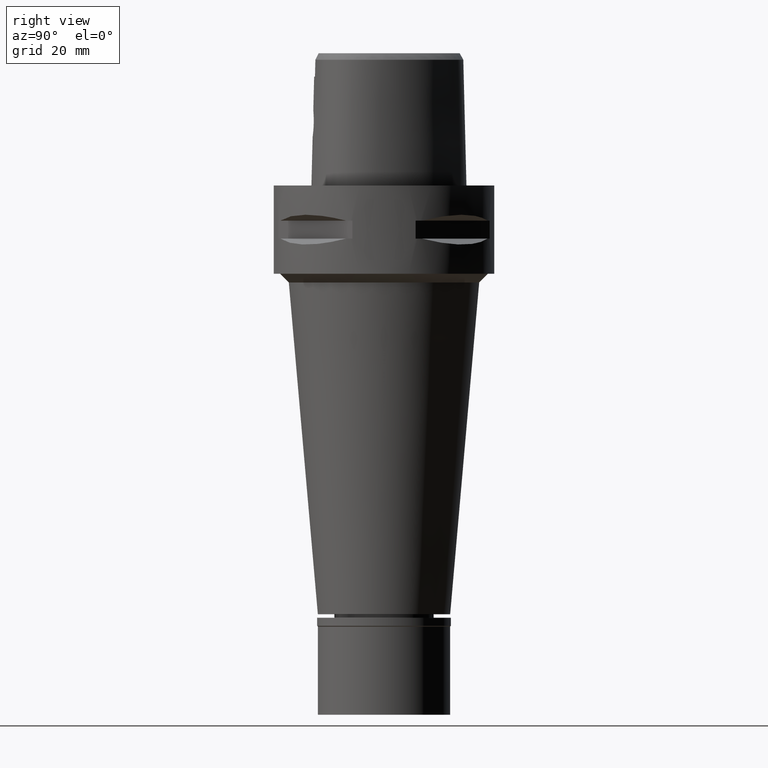
[diagram: clean part render]
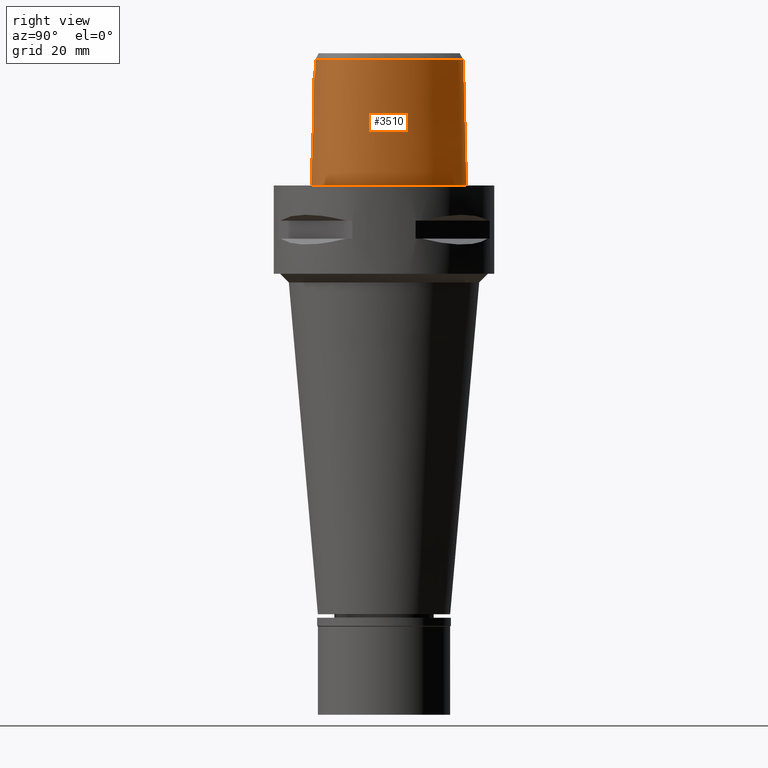
[diagram: same view with one face highlighted and labeled with its STEP entity id]
A machine part, right view. The second image highlights one B-rep face of the part: STEP entity #3510.
In plain terms, the highlighted face is a freeform B-spline surface patch.
Its self-contained STEP definition (entity closure, byte-faithful):
#32 = CARTESIAN_POINT ( 'NONE',  ( 1.354452607727719693, -16.00396228356807171, 16.73322745257438626 ) ) ;
#50 = VERTEX_POINT ( 'NONE', #1193 ) ;
#89 = CARTESIAN_POINT ( 'NONE',  ( 8.946741556184786504, -15.03902343750172577, 1.635247926651262063E-13 ) ) ;
#141 = CARTESIAN_POINT ( 'NONE',  ( 14.43869636025999981, -10.95090983396000084, 19.20395678522000082 ) ) ;
#157 = CARTESIAN_POINT ( 'NONE',  ( -1.591572851427000094E-11, -16.45500000000000185, 1.608343088339999949E-13 ) ) ;
#163 = CARTESIAN_POINT ( 'NONE',  ( 16.68217931803999932, -8.451606615302999614, -0.5704145579768999941 ) ) ;
#174 = CARTESIAN_POINT ( 'NONE',  ( 1.078575942914882235, -16.15565394761469520, 11.14687127074763495 ) ) ;
#178 = CARTESIAN_POINT ( 'NONE',  ( 6.766080446176000696E-11, 18.69499999997999851, 1.596870783752999901E-13 ) ) ;
#187 = CARTESIAN_POINT ( 'NONE',  ( 5.009809431609999919, -15.92506887082999967, 9.316771113621999945 ) ) ;
#201 = CARTESIAN_POINT ( 'NONE',  ( 2.681016418395044454, -15.93974068711151837, 15.46783011061540947 ) ) ;
#217 = CARTESIAN_POINT ( 'NONE',  ( 17.26695542753000012, -0.2694874597836000585, 9.316771113621999945 ) ) ;
#228 = CARTESIAN_POINT ( 'NONE',  ( 2.587629427706296781, -16.02556131009806961, 12.38252332209277640 ) ) ;
#242 = CARTESIAN_POINT ( 'NONE',  ( 4.965998119975999714, -15.68039706028000246, 19.20395678522000082 ) ) ;
#254 = CARTESIAN_POINT ( 'NONE',  ( 2.180887052763814449, -15.96648089881372279, 16.13220278528723028 ) ) ;
#267 = CARTESIAN_POINT ( 'NONE',  ( 11.47659488236999970, 12.46143684623999981, -0.5704145579768999941 ) ) ;
#285 = CARTESIAN_POINT ( 'NONE',  ( 1.935527014327863338, -16.09705987419036077, 11.64218429700402879 ) ) ;
#300 = CARTESIAN_POINT ( 'NONE',  ( -0.5593289320948999777, 18.44521845052999964, 9.316771113621999945 ) ) ;
#326 = CARTESIAN_POINT ( 'NONE',  ( 15.82879768173000024, 3.455165251978999930, 29.09114245681999833 ) ) ;
#333 = CARTESIAN_POINT ( 'NONE',  ( 13.75951381385658223, 7.944084035686391765, 28.52071728562190245 ) ) ;
#349 = CARTESIAN_POINT ( 'NONE',  ( 16.29641061553000014, 3.623925472855999974, 9.316771113621999945 ) ) ;
#350 = CARTESIAN_POINT ( 'NONE',  ( 0.0000000000000000000, -16.02877864023999877, 17.05000000000000071 ) ) ;
#356 = CARTESIAN_POINT ( 'NONE',  ( 15.84228676733417984, 3.460033425849808886, 28.52071728562190245 ) ) ;
#366 = CARTESIAN_POINT ( 'NONE',  ( 3.168920890822999770, -15.55911073834000113, 28.52071374672999582 ) ) ;
#374 = B_SPLINE_SURFACE_WITH_KNOTS ( 'NONE', 3, 3, ( 
 ( #1765, #1021, #4401, #2138 ),
 ( #3179, #3260, #1387, #2474 ),
 ( #3668, #4726, #3640, #1281 ),
 ( #1361, #187, #242, #2909 ),
 ( #2797, #1720, #643, #4347 ),
 ( #3281, #2525, #4750, #909 ),
 ( #4453, #4075, #3586, #938 ),
 ( #2164, #4805, #141, #2450 ),
 ( #2426, #3237, #1334, #3965 ),
 ( #536, #2064, #4044, #4426 ),
 ( #163, #4825, #1310, #561 ),
 ( #2499, #1693, #3206, #4378 ),
 ( #2826, #3991, #2088, #3608 ),
 ( #2854, #2876, #960, #4014 ),
 ( #582, #217, #986, #2627 ),
 ( #2189, #349, #1149, #326 ),
 ( #1098, #4175, #1846, #2967 ),
 ( #267, #3722, #1469, #696 ),
 ( #1901, #4942, #3342, #2991 ),
 ( #1497, #3019, #1524, #4203 ),
 ( #4558, #1127, #4152, #2649 ),
 ( #721, #742, #2268, #1867 ),
 ( #4533, #2576, #4503, #4862 ),
 ( #3696, #300, #1821, #4894 ) ),
 .UNSPECIFIED., .F., .F., .F.,
 ( 4, 1, 1, 1, 1, 1, 1, 1, 1, 1, 1, 1, 1, 1, 1, 1, 1, 1, 1, 1, 1, 4 ),
 ( 4, 4 ),
 ( -0.01796851319148000045, 0.0000000000000000000, 0.08333333333348000305, 0.1666666666667000196, 0.2083333333333000081, 0.2499999999998999967, 0.2916666666666000163, 0.3124999999997999933, 0.3333333333331000015, 0.3541666666665000407, 0.3749999999997999933, 0.4166666666664000096, 0.4583333333330000259, 0.4999999999995999866, 0.5833333333328000192, 0.6666666666660999718, 0.7499999999993000044, 0.8333333333325000369, 0.9166666666657000695, 0.9583333333322999747, 1.000000000000000000, 1.011711214084999977 ),
 ( 5.809728198525000277E-09, 0.9999997037037999803 ),
 .UNSPECIFIED. ) ;
#385 = CARTESIAN_POINT ( 'NONE',  ( 3.738627708319086640, -15.49270856215504644, 28.52071728562190245 ) ) ;
#423 = CARTESIAN_POINT ( 'NONE',  ( 16.85489147434397239, -5.354527548487260979, 28.52071728562190245 ) ) ;
#476 = CARTESIAN_POINT ( 'NONE',  ( 0.7748558813809633961, -16.16821842566323042, 11.04831638025929763 ) ) ;
#536 = CARTESIAN_POINT ( 'NONE',  ( 16.21839714489000173, -9.363695957446001472, -0.5704145579768999941 ) ) ;
#561 = CARTESIAN_POINT ( 'NONE',  ( 16.00353269289000124, -8.149703244535000835, 29.09114245681999833 ) ) ;
#570 = CARTESIAN_POINT ( 'NONE',  ( 3.050149896193000920, -15.93316336324772386, 14.18941404704232490 ) ) ;
#582 = CARTESIAN_POINT ( 'NONE',  ( 17.51166498198000099, -0.2260900534826000008, -0.5704145579768999941 ) ) ;
#600 = CARTESIAN_POINT ( 'NONE',  ( 2.170299400654049915, -15.96703807926082952, 16.14297866672072601 ) ) ;
#616 = FACE_OUTER_BOUND ( 'NONE', #2856, .T. ) ;
#628 = CARTESIAN_POINT ( 'NONE',  ( 2.262444582314412145, -15.96216938760132109, 16.04565077979858501 ) ) ;
#643 = CARTESIAN_POINT ( 'NONE',  ( 8.782085176560000761, -14.58525478159000066, 19.20395678522000082 ) ) ;
#655 = CARTESIAN_POINT ( 'NONE',  ( 2.775961287962938062, -15.99857004330711163, 12.73620107527709067 ) ) ;
#682 = CARTESIAN_POINT ( 'NONE',  ( 2.417729193041619595, -16.04731727844055911, 12.13798983179893654 ) ) ;
#696 = CARTESIAN_POINT ( 'NONE',  ( 10.90668517126999859, 11.98047084220999992, 29.09114245681999833 ) ) ;
#721 = CARTESIAN_POINT ( 'NONE',  ( 0.4897519511925998992, 18.72964555264000097, -0.5704145579768999941 ) ) ;
#742 = CARTESIAN_POINT ( 'NONE',  ( 0.4768940289813000111, 18.48195224257999669, 9.316771113621999945 ) ) ;
#748 = CARTESIAN_POINT ( 'NONE',  ( 1.893775678554818098, 17.84807068955749898, 28.52071728562190245 ) ) ;
#779 = CARTESIAN_POINT ( 'NONE',  ( -3.151832883024999780E-11, 17.98202997909999823, 28.52071728569000086 ) ) ;
#819 = CARTESIAN_POINT ( 'NONE',  ( 14.26907046692590519, -10.79012245165286643, 28.52071728562190245 ) ) ;
#853 = CARTESIAN_POINT ( 'NONE',  ( 0.1898211197373469161, -16.18126839359000257, 10.95000000000000107 ) ) ;
#860 = CARTESIAN_POINT ( 'NONE',  ( 17.71143735561807731, -3.269218750000115747, 1.635247926651262063E-13 ) ) ;
#882 = B_SPLINE_CURVE_WITH_KNOTS ( 'NONE', 3,
 ( #3777, #1796, #3315, #350 ),
 .UNSPECIFIED., .F., .F.,
 ( 4, 4 ),
 ( 0.0000000000000000000, 1.000000000000000000 ),
 .UNSPECIFIED. ) ;
#883 = ORIENTED_EDGE ( 'NONE', *, *, #1744, .T. ) ;
#909 = CARTESIAN_POINT ( 'NONE',  ( 11.32630903651999965, -13.06981832517000086, 29.09114245681999833 ) ) ;
#928 = CARTESIAN_POINT ( 'NONE',  ( 16.66912842140230921, -8.445800781249749534, 1.635247926651262063E-13 ) ) ;
#938 = CARTESIAN_POINT ( 'NONE',  ( 13.05575617205000150, -11.90823727459000025, 29.09114245681999833 ) ) ;
#950 = CARTESIAN_POINT ( 'NONE',  ( 3.014162081768899437, -15.95399573205361854, 13.52323755265707383 ) ) ;
#960 = CARTESIAN_POINT ( 'NONE',  ( 17.22987942155999974, -3.272349402665999829, 19.20395678522000082 ) ) ;
#971 = CARTESIAN_POINT ( 'NONE',  ( 2.320231428406521523, -15.95909571851455944, 15.98050410814317779 ) ) ;
#973 = EDGE_CURVE ( 'NONE', #2877, #2215, #2784, .T. ) ;
#986 = CARTESIAN_POINT ( 'NONE',  ( 17.02224587306999837, -0.3128848660846000329, 19.20395678522000082 ) ) ;
#1003 = CARTESIAN_POINT ( 'NONE',  ( 2.907704111751938214, -15.93016185020670861, 14.92213459652817953 ) ) ;
#1021 = CARTESIAN_POINT ( 'NONE',  ( -1.079551363736000136, -16.20136649747000135, 9.316771113621999945 ) ) ;
#1026 = CARTESIAN_POINT ( 'NONE',  ( 3.191384142201736829, -15.58827398948734633, 27.24714251809000132 ) ) ;
#1033 = CARTESIAN_POINT ( 'NONE',  ( 2.759961640973259467, -15.93564958624567929, 15.30749493561488705 ) ) ;
#1059 = CARTESIAN_POINT ( 'NONE',  ( 1.979050802157150679, -16.09313883417927116, 11.67852903116020791 ) ) ;
#1071 = CARTESIAN_POINT ( 'NONE',  ( 0.0000000000000000000, -16.02877864023999877, 17.05000000000000071 ) ) ;
#1085 = CARTESIAN_POINT ( 'NONE',  ( -1.980591514487999971E-12, -16.18126839358999902, 10.94999999999999929 ) ) ;
#1098 = CARTESIAN_POINT ( 'NONE',  ( 14.39249254917999998, 8.309508946952000485, -0.5704145579768999941 ) ) ;
#1103 = CARTESIAN_POINT ( 'NONE',  ( -3.151832883024999780E-11, 17.98202997909999823, 28.52071728569000086 ) ) ;
#1127 = CARTESIAN_POINT ( 'NONE',  ( 1.992618757980999744, 18.32080821491000222, 9.316771113621999945 ) ) ;
#1149 = CARTESIAN_POINT ( 'NONE',  ( 16.06260414862999752, 3.539545362417000351, 19.20395678522000082 ) ) ;
#1177 = LINE ( 'NONE', #2679, #4864 ) ;
#1193 = CARTESIAN_POINT ( 'NONE',  ( 2.030224829794000080E-07, -15.83752876601000281, 24.70000006102999990 ) ) ;
#1234 = CARTESIAN_POINT ( 'NONE',  ( 17.56373942933423749, -5.455996093749595488, 1.635247926651262063E-13 ) ) ;
#1281 = CARTESIAN_POINT ( 'NONE',  ( 1.286803369834000010, -15.75925599787999687, 29.09114245681999833 ) ) ;
#1310 = CARTESIAN_POINT ( 'NONE',  ( 16.22974823460999971, -8.250337701458001050, 19.20395678522000082 ) ) ;
#1320 = CARTESIAN_POINT ( 'NONE',  ( 2.044225401073505033, -16.08701963945086533, 11.73626748625702554 ) ) ;
#1334 = CARTESIAN_POINT ( 'NONE',  ( 15.25987615191000124, -9.930205417580001637, 19.20395678522000082 ) ) ;
#1347 = CARTESIAN_POINT ( 'NONE',  ( 2.836520581861567081, -15.93251973351802242, 15.12113420123080942 ) ) ;
#1361 = CARTESIAN_POINT ( 'NONE',  ( 5.053620743243999236, -16.16974068137999865, -0.5704145579768999941 ) ) ;
#1363 = B_SPLINE_CURVE_WITH_KNOTS ( 'NONE', 3,
 ( #4290, #853, #2371, #3908, #476, #1998, #3520, #174, #2461, #2952, #1753, #2561, #4489, #3293, #4765, #4878, #285, #1059, #1320, #2890, #4112, #3624, #4842, #3654, #4084, #1433, #682, #2842, #228, #3596, #4388, #4792, #655, #1703, #3248, #3220, #2176, #950, #4002, #2098, #4412, #4466, #3707, #570, #1807, #1776, #3681, #1003, #2514, #4815, #1347, #4439, #4062, #3270, #1033, #201, #1373, #1732, #2864, #971, #628, #2484, #4027, #254, #600, #2150, #1403, #3327, #2124, #2924, #2536, #2232, #3427, #2254, #2660, #32, #1560, #4903, #3785, #2687, #1460 ),
 .UNSPECIFIED., .F., .F.,
 ( 4, 2, 2, 1, 1, 1, 2, 2, 2, 2, 2, 1, 1, 2, 2, 2, 2, 2, 1, 2, 2, 2, 2, 2, 2, 2, 2, 1, 1, 1, 2, 2, 2, 2, 2, 1, 1, 2, 2, 2, 2, 2, 2, 2, 2, 4 ),
 ( 0.0000000000000000000, 0.06250000000000194289, 0.09375000000000292821, 0.1093750000000034278, 0.1171875000000035943, 0.1210937500000035666, 0.1230468750000035943, 0.1250000000000036082, 0.1874999999999998612, 0.2187499999999979738, 0.2343749999999970024, 0.2421874999999965306, 0.2460937499999961142, 0.2480468749999960587, 0.2499999999999960032, 0.2812499999999952816, 0.3124999999999946154, 0.3437499999999938938, 0.3593749999999935607, 0.3671874999999931721, 0.3749999999999927280, 0.4374999999999883982, 0.4687499999999862332, 0.4843749999999854561, 0.4999999999999846789, 0.5624999999999807931, 0.5937499999999786837, 0.6093749999999779066, 0.6171874999999776845, 0.6210937499999773515, 0.6230468749999771294, 0.6249999999999770184, 0.6874999999999783507, 0.7187499999999789058, 0.7343749999999792388, 0.7421874999999797939, 0.7460937499999801270, 0.7480468749999799050, 0.7499999999999797939, 0.7812499999999830136, 0.7968749999999842348, 0.8124999999999854561, 0.8437499999999878986, 0.8593749999999890088, 0.8749999999999900080, 1.000000000000000000 ),
 .UNSPECIFIED. ) ;
#1373 = CARTESIAN_POINT ( 'NONE',  ( 2.520317714005605669, -15.94834054842959503, 15.72060082174885132 ) ) ;
#1387 = CARTESIAN_POINT ( 'NONE',  ( -0.7138086239183000226, -15.96808641368000004, 19.20395678522000082 ) ) ;
#1397 = EDGE_CURVE ( 'NONE', #50, #3511, #882, .T. ) ;
#1403 = CARTESIAN_POINT ( 'NONE',  ( 2.088968113521980197, -15.97131126311716542, 16.22457167555463542 ) ) ;
#1427 = CARTESIAN_POINT ( 'NONE',  ( 3.168920890822999770, -15.55911073834000113, 28.52071374672999582 ) ) ;
#1433 = CARTESIAN_POINT ( 'NONE',  ( 2.290593162243965253, -16.06186194956453761, 11.98364703425936995 ) ) ;
#1460 = CARTESIAN_POINT ( 'NONE',  ( 0.0000000000000000000, -16.02877864023999877, 17.05000000000000071 ) ) ;
#1469 = CARTESIAN_POINT ( 'NONE',  ( 11.09665507497000014, 12.14079284355000077, 19.20395678522000082 ) ) ;
#1478 = CARTESIAN_POINT ( 'NONE',  ( 7.523733068099107690, 15.26501041874258213, 28.52071728562190245 ) ) ;
#1497 = CARTESIAN_POINT ( 'NONE',  ( 4.735056263137000343, 17.74784407613000070, -0.5704145579768999941 ) ) ;
#1507 = CARTESIAN_POINT ( 'NONE',  ( 16.99625257116878174, -3.273868232426702995, 28.52071728562190245 ) ) ;
#1524 = CARTESIAN_POINT ( 'NONE',  ( 4.522582310650000714, 17.29581193677000073, 19.20395678522000082 ) ) ;
#1556 = CARTESIAN_POINT ( 'NONE',  ( 11.33338046474290373, -13.08225241901327607, 28.52071728562190245 ) ) ;
#1560 = CARTESIAN_POINT ( 'NONE',  ( 1.262794661676007069, -16.00712763199255662, 16.77676499123156972 ) ) ;
#1615 = CARTESIAN_POINT ( 'NONE',  ( 5.051093167571108822, -16.15562500000260115, 1.635247926651262063E-13 ) ) ;
#1688 = CARTESIAN_POINT ( 'NONE',  ( 13.50690093479998488, -12.48264648437769964, 1.635247926651262063E-13 ) ) ;
#1693 = CARTESIAN_POINT ( 'NONE',  ( 16.94089135171000038, -7.099401475192999911, 9.316771113621999945 ) ) ;
#1703 = CARTESIAN_POINT ( 'NONE',  ( 2.796681338616600065, -15.99533385695102794, 12.78273984513034556 ) ) ;
#1720 = CARTESIAN_POINT ( 'NONE',  ( 8.866858758149000153, -14.81887824799999898, 9.316771113621999945 ) ) ;
#1732 = CARTESIAN_POINT ( 'NONE',  ( 2.459696765391574669, -15.95161770387217359, 15.80683248070965163 ) ) ;
#1744 = EDGE_CURVE ( 'NONE', #2264, #4265, #4719, .T. ) ;
#1753 = CARTESIAN_POINT ( 'NONE',  ( 1.150837130458068236, -16.15205889506641412, 11.17544410961278167 ) ) ;
#1765 = CARTESIAN_POINT ( 'NONE',  ( -1.089046662554999934, -16.44835921565999826, -0.5704145579768999941 ) ) ;
#1776 = CARTESIAN_POINT ( 'NONE',  ( 2.975249651912823090, -15.92914271478721311, 14.67846616982686747 ) ) ;
#1796 = CARTESIAN_POINT ( 'NONE',  ( 6.782427745162731141E-08, -15.90128720080152824, 22.15000025259048755 ) ) ;
#1798 = CARTESIAN_POINT ( 'NONE',  ( 1.084489111477044077, -15.83754148653905602, 24.70000016056458136 ) ) ;
#1807 = CARTESIAN_POINT ( 'NONE',  ( 3.032153927794988935, -15.93034332000362419, 14.38503233290865779 ) ) ;
#1821 = CARTESIAN_POINT ( 'NONE',  ( -0.5443412260875999387, 18.19851716624000204, 19.20395678522000082 ) ) ;
#1846 = CARTESIAN_POINT ( 'NONE',  ( 13.96223233681999787, 8.061115452595998931, 19.20395678522000082 ) ) ;
#1853 = CARTESIAN_POINT ( 'NONE',  ( 16.01658383235468008, -8.155509186612492911, 28.52071728562190245 ) ) ;
#1867 = CARTESIAN_POINT ( 'NONE',  ( 0.4511781845585999817, 17.98656562247999702, 29.09114245681999833 ) ) ;
#1880 = CARTESIAN_POINT ( 'NONE',  ( 16.79165444020021525, -0.3537785292840713303, 28.52071728562190245 ) ) ;
#1901 = CARTESIAN_POINT ( 'NONE',  ( 7.976721799452999306, 15.84201698333000152, -0.5704145579768999941 ) ) ;
#1998 = CARTESIAN_POINT ( 'NONE',  ( 0.9209982704662165176, -16.16262558226605250, 11.09193420934338548 ) ) ;
#2004 = CARTESIAN_POINT ( 'NONE',  ( 14.78833380399403197, -11.28232910156808444, 1.635247926651262063E-13 ) ) ;
#2064 = CARTESIAN_POINT ( 'NONE',  ( 16.00394177384999850, -9.239880090887000463, 9.316771113621999945 ) ) ;
#2083 = CARTESIAN_POINT ( 'NONE',  ( 0.6801907859383344856, 18.69499999999571571, 1.635247926651262063E-13 ) ) ;
#2088 = CARTESIAN_POINT ( 'NONE',  ( 17.08644829536000032, -5.387673914516000195, 19.20395678522000082 ) ) ;
#2098 = CARTESIAN_POINT ( 'NONE',  ( 3.041209740384549942, -15.94490574327321930, 13.76368115324908281 ) ) ;
#2124 = CARTESIAN_POINT ( 'NONE',  ( 1.898958778535287273, -15.98067541706731731, 16.38724889510308103 ) ) ;
#2138 = CARTESIAN_POINT ( 'NONE',  ( -1.060560766097000229, -15.70738106109999954, 29.09114245681999833 ) ) ;
#2150 = CARTESIAN_POINT ( 'NONE',  ( 2.164021906619612245, -15.96736812113674553, 16.14931344321803053 ) ) ;
#2164 = CARTESIAN_POINT ( 'NONE',  ( 14.79871907459999925, -11.29217323823000108, -0.5704145579768999941 ) ) ;
#2168 = LINE ( 'NONE', #1103, #3552 ) ;
#2169 = CARTESIAN_POINT ( 'NONE',  ( 3.235096591086000117, -15.64751801257999908, 24.70000006080999810 ) ) ;
#2176 = CARTESIAN_POINT ( 'NONE',  ( 2.957688824804170835, -15.96752846870872666, 13.22897551199208621 ) ) ;
#2189 = CARTESIAN_POINT ( 'NONE',  ( 16.53021708242999921, 3.708305583294000396, -0.5704145579768999941 ) ) ;
#2215 = VERTEX_POINT ( 'NONE', #366 ) ;
#2217 = ORIENTED_EDGE ( 'NONE', *, *, #973, .T. ) ;
#2232 = CARTESIAN_POINT ( 'NONE',  ( 1.737183591012293027, -15.98828192606207388, 16.50739953107602176 ) ) ;
#2254 = CARTESIAN_POINT ( 'NONE',  ( 1.531589067142498539, -15.99732691922906369, 16.63945844436470267 ) ) ;
#2264 = VERTEX_POINT ( 'NONE', #3792 ) ;
#2268 = CARTESIAN_POINT ( 'NONE',  ( 0.4640361067698999809, 18.23425893253000041, 19.20395678522000082 ) ) ;
#2300 = CARTESIAN_POINT ( 'NONE',  ( 5.902447799196640865, -15.16907841529824630, 28.52071728562190245 ) ) ;
#2338 = CARTESIAN_POINT ( 'NONE',  ( -3.151832883024999780E-11, 17.98202997909999823, 28.52071728569000086 ) ) ;
#2371 = CARTESIAN_POINT ( 'NONE',  ( 0.3842297570381348337, -16.17878268541348064, 10.96777226348872247 ) ) ;
#2375 = CARTESIAN_POINT ( 'NONE',  ( 7.967839664225208729, 15.83070312499480714, 1.635247926651262063E-13 ) ) ;
#2398 = ORIENTED_EDGE ( 'NONE', *, *, #4710, .F. ) ;
#2421 = EDGE_CURVE ( 'NONE', #2559, #3511, #1363, .T. ) ;
#2426 = CARTESIAN_POINT ( 'NONE',  ( 15.66039569079999794, -10.22138777225000084, -0.5704145579768999941 ) ) ;
#2445 = CARTESIAN_POINT ( 'NONE',  ( 17.16495051781134151, -7.165908203125344045, 1.635247926651262063E-13 ) ) ;
#2450 = CARTESIAN_POINT ( 'NONE',  ( 14.25868500309000098, -10.78027813182999850, 29.09114245681999833 ) ) ;
#2461 = CARTESIAN_POINT ( 'NONE',  ( 1.120763508486741777, -16.15358090583465867, 11.16333240776579494 ) ) ;
#2474 = CARTESIAN_POINT ( 'NONE',  ( -0.7074880755080998895, -15.72098129229000385, 29.09114245681999833 ) ) ;
#2484 = CARTESIAN_POINT ( 'NONE',  ( 2.232748692361829601, -15.96374470980125793, 16.07819212816551868 ) ) ;
#2499 = CARTESIAN_POINT ( 'NONE',  ( 17.17866842593999976, -7.169980043611000831, -0.5704145579768999941 ) ) ;
#2514 = CARTESIAN_POINT ( 'NONE',  ( 2.883981873338816726, -15.93080840504316420, 14.99485968243840972 ) ) ;
#2525 = CARTESIAN_POINT ( 'NONE',  ( 11.57144732050000080, -13.50085889171999831, 9.316771113621999945 ) ) ;
#2536 = CARTESIAN_POINT ( 'NONE',  ( 1.779262221764184915, -15.98633376436652753, 16.47774649146144910 ) ) ;
#2559 = VERTEX_POINT ( 'NONE', #1085 ) ;
#2561 = CARTESIAN_POINT ( 'NONE',  ( 1.158353828547291409, -16.15167258786864934, 11.17852165137630926 ) ) ;
#2576 = CARTESIAN_POINT ( 'NONE',  ( -0.3730031669434999975, 18.45651549991999829, 9.316771113621999945 ) ) ;
#2627 = CARTESIAN_POINT ( 'NONE',  ( 16.77753631861000372, -0.3562822723856000628, 29.09114245681999833 ) ) ;
#2633 = CARTESIAN_POINT ( 'NONE',  ( 4.422474504765936842, 17.08283549832882287, 28.52071728562190245 ) ) ;
#2649 = CARTESIAN_POINT ( 'NONE',  ( 1.890839689257999945, 17.83402871186000027, 29.09114245681999833 ) ) ;
#2657 = CARTESIAN_POINT ( 'NONE',  ( 0.6295828025424695662, 17.98202997637991274, 28.52071728562190245 ) ) ;
#2660 = CARTESIAN_POINT ( 'NONE',  ( 1.399412083726095712, -16.00233608542868069, 16.71046994217811843 ) ) ;
#2679 = CARTESIAN_POINT ( 'NONE',  ( -1.980591514487999971E-12, -16.18126839358999902, 10.94999999999999929 ) ) ;
#2685 = CARTESIAN_POINT ( 'NONE',  ( 10.91764517732630857, 11.98972036053591594, 28.52071728562190245 ) ) ;
#2687 = CARTESIAN_POINT ( 'NONE',  ( 0.3724840145390354018, -16.02877864023999521, 17.04999999999999716 ) ) ;
#2722 = ORIENTED_EDGE ( 'NONE', *, *, #1397, .T. ) ;
#2749 = CARTESIAN_POINT ( 'NONE',  ( 4.728927206815285444, 17.73480468749460925, 1.635247926651262063E-13 ) ) ;
#2753 = ORIENTED_EDGE ( 'NONE', *, *, #3599, .T. ) ;
#2770 = B_SPLINE_CURVE_WITH_KNOTS ( 'NONE', 3,
 ( #2169, #3700, #1798, #3317 ),
 .UNSPECIFIED., .F., .F.,
 ( 4, 4 ),
 ( 0.0000000000000000000, 1.000000000000000000 ),
 .UNSPECIFIED. ) ;
#2784 = B_SPLINE_CURVE_WITH_KNOTS ( 'NONE', 3,
 ( #779, #2657, #748, #2633, #1478, #2685, #333, #356, #1880, #1507, #423, #4255, #1853, #3095, #3371, #819, #3399, #1556, #4564, #2300, #385, #3002 ),
 .UNSPECIFIED., .F., .F.,
 ( 4, 1, 1, 1, 1, 1, 1, 1, 1, 1, 1, 1, 1, 1, 1, 1, 1, 1, 1, 4 ),
 ( 0.0000000000000000000, 0.04404152929334001487, 0.08808305858551720990, 0.1761661171698718220, 0.2642491757542264619, 0.3523322343385810740, 0.4404152929230412683, 0.5284983515073958804, 0.5725398807995731865, 0.6165814100917503815, 0.6606229393839277986, 0.6826437040300163961, 0.7046644686762107979, 0.7266852333222995064, 0.7487059979682822997, 0.7927475272605654100, 0.8367890565527427160, 0.8808305858449199111, 0.9689136444292956174, 1.000000000000000000 ),
 .UNSPECIFIED. ) ;
#2790 = CARTESIAN_POINT ( 'NONE',  ( 16.51672824780114723, 3.703437499999497007, 1.635247926651262063E-13 ) ) ;
#2797 = CARTESIAN_POINT ( 'NONE',  ( 8.951632339738001320, -15.05250171440999907, -0.5704145579768999941 ) ) ;
#2826 = CARTESIAN_POINT ( 'NONE',  ( 17.57791639371000159, -5.458025465409999555, -0.5704145579768999941 ) ) ;
#2842 = CARTESIAN_POINT ( 'NONE',  ( 2.478737183293503232, -16.03986208745135755, 12.22013516387799648 ) ) ;
#2854 = CARTESIAN_POINT ( 'NONE',  ( 17.72574105662999955, -3.269125760316999862, -0.5704145579768999941 ) ) ;
#2856 = EDGE_LOOP ( 'NONE', ( #3462, #2217, #2398, #4110, #2722, #3885, #2753, #883 ) ) ;
#2864 = CARTESIAN_POINT ( 'NONE',  ( 2.356615372638850570, -15.95714923954085585, 15.93698914121854671 ) ) ;
#2876 = CARTESIAN_POINT ( 'NONE',  ( 17.47781023909000098, -3.270737581490999801, 9.316771113621999945 ) ) ;
#2877 = VERTEX_POINT ( 'NONE', #2338 ) ;
#2890 = CARTESIAN_POINT ( 'NONE',  ( 2.076784380858856416, -16.08390063340872800, 11.76594178764125331 ) ) ;
#2909 = CARTESIAN_POINT ( 'NONE',  ( 4.922186808341999509, -15.43572524972999993, 29.09114245681999833 ) ) ;
#2916 = CARTESIAN_POINT ( 'NONE',  ( 3.235096591086000117, -15.64751801257999908, 24.70000006080999810 ) ) ;
#2924 = CARTESIAN_POINT ( 'NONE',  ( 1.859549321997236992, -15.98255794229956273, 16.41807320997656205 ) ) ;
#2952 = CARTESIAN_POINT ( 'NONE',  ( 1.138812104615386955, -16.15267061231297419, 11.17057442770735420 ) ) ;
#2967 = CARTESIAN_POINT ( 'NONE',  ( 13.74710223065000037, 7.936918705416999842, 29.09114245681999833 ) ) ;
#2991 = CARTESIAN_POINT ( 'NONE',  ( 7.514850767608999504, 15.25369634989999845, 29.09114245681999833 ) ) ;
#3002 = CARTESIAN_POINT ( 'NONE',  ( 3.168920890822999770, -15.55911073834000113, 28.52071374672999582 ) ) ;
#3019 = CARTESIAN_POINT ( 'NONE',  ( 4.628819286894000129, 17.52182800645000071, 9.316771113621999945 ) ) ;
#3095 = CARTESIAN_POINT ( 'NONE',  ( 15.58740368722555836, -8.999391713747623811, 28.52071728562190245 ) ) ;
#3127 = CARTESIAN_POINT ( 'NONE',  ( 11.68694516583672716, -13.70394531249364789, 1.635247926651262063E-13 ) ) ;
#3179 = CARTESIAN_POINT ( 'NONE',  ( -0.7264497207386001465, -16.46229665645999773, -0.5704145579768999941 ) ) ;
#3206 = CARTESIAN_POINT ( 'NONE',  ( 16.70311427747999744, -7.028822906774999879, 19.20395678522000082 ) ) ;
#3220 = CARTESIAN_POINT ( 'NONE',  ( 2.899217746531572271, -15.97873758491097718, 13.02871175161756589 ) ) ;
#3237 = CARTESIAN_POINT ( 'NONE',  ( 15.46013592136000092, -10.07579659491999990, 9.316771113621999945 ) ) ;
#3239 = VERTEX_POINT ( 'NONE', #3873 ) ;
#3248 = CARTESIAN_POINT ( 'NONE',  ( 2.806282367902104724, -15.99380854387472795, 12.80500890572250761 ) ) ;
#3260 = CARTESIAN_POINT ( 'NONE',  ( -0.7201291723283999024, -16.21519153506999800, 9.316771113621999945 ) ) ;
#3270 = CARTESIAN_POINT ( 'NONE',  ( 2.821425036078518467, -15.93312409536605578, 15.15848376097718031 ) ) ;
#3281 = CARTESIAN_POINT ( 'NONE',  ( 11.69401646248999960, -13.71637917498999926, -0.5704145579768999941 ) ) ;
#3293 = CARTESIAN_POINT ( 'NONE',  ( 1.466707760578711994, -16.13401281180648539, 11.31839107165521874 ) ) ;
#3315 = CARTESIAN_POINT ( 'NONE',  ( 6.797948791014920614E-08, -15.96503292052123690, 19.60000012629524591 ) ) ;
#3317 = CARTESIAN_POINT ( 'NONE',  ( 2.030224829794000080E-07, -15.83752876601000281, 24.70000006102999990 ) ) ;
#3327 = CARTESIAN_POINT ( 'NONE',  ( 2.014841840659067795, -15.97504399877426984, 16.29192479722134124 ) ) ;
#3342 = CARTESIAN_POINT ( 'NONE',  ( 7.668807778223000859, 15.44980322770999948, 19.20395678522000082 ) ) ;
#3371 = CARTESIAN_POINT ( 'NONE',  ( 15.07117004567217045, -9.793013887526381467, 28.52071728562190245 ) ) ;
#3399 = CARTESIAN_POINT ( 'NONE',  ( 13.06460231237960024, -11.91950040983202541, 28.52071728562190245 ) ) ;
#3427 = CARTESIAN_POINT ( 'NONE',  ( 1.616099766049515107, -15.99381337938741687, 16.58846643699799372 ) ) ;
#3462 = ORIENTED_EDGE ( 'NONE', *, *, #4105, .F. ) ;
#3510 = ADVANCED_FACE ( 'NONE', ( #616 ), #374, .T. ) ;
#3511 = VERTEX_POINT ( 'NONE', #1071 ) ;
#3520 = CARTESIAN_POINT ( 'NONE',  ( 0.9939297242884642669, -16.15959612542590307, 11.11569146158373300 ) ) ;
#3526 = CARTESIAN_POINT ( 'NONE',  ( 2.040572357696246009, 18.55015624999680313, 1.635247926651262063E-13 ) ) ;
#3552 = VECTOR ( 'NONE', #3699, 1000.000000000000227 ) ;
#3586 = CARTESIAN_POINT ( 'NONE',  ( 13.20908641820999918, -12.10346131975000006, 19.20395678522000082 ) ) ;
#3596 = CARTESIAN_POINT ( 'NONE',  ( 2.638828814086502828, -16.01860464026841413, 12.46732066277610684 ) ) ;
#3599 = EDGE_CURVE ( 'NONE', #2559, #2264, #1177, .T. ) ;
#3608 = CARTESIAN_POINT ( 'NONE',  ( 16.84071424619000013, -5.352498139067999539, 29.09114245681999833 ) ) ;
#3624 = CARTESIAN_POINT ( 'NONE',  ( 2.130834279645533513, -16.07853149005606852, 11.81777582520600767 ) ) ;
#3640 = CARTESIAN_POINT ( 'NONE',  ( 1.298308562142999945, -16.00668761282000219, 19.20395678522000082 ) ) ;
#3654 = CARTESIAN_POINT ( 'NONE',  ( 2.147962331140050196, -16.07679769526337665, 11.83463701146478542 ) ) ;
#3668 = CARTESIAN_POINT ( 'NONE',  ( 1.321318946762000124, -16.50155084268000039, -0.5704145579768999941 ) ) ;
#3681 = CARTESIAN_POINT ( 'NONE',  ( 2.951306861662620573, -15.92924742299003960, 14.77626636585412001 ) ) ;
#3684 = B_SPLINE_CURVE_WITH_KNOTS ( 'NONE', 3,
 ( #2916, #4459, #1026, #1427 ),
 .UNSPECIFIED., .F., .F.,
 ( 4, 4 ),
 ( 0.0000000000000000000, 1.000000000000000000 ),
 .UNSPECIFIED. ) ;
#3696 = CARTESIAN_POINT ( 'NONE',  ( -0.5743166381023000477, 18.69191973481999725, -0.5704145579768999941 ) ) ;
#3699 = DIRECTION ( 'NONE',  ( 3.476355713690889960E-12, 0.02499051285796925065, -0.9996876883642689116 ) ) ;
#3700 = CARTESIAN_POINT ( 'NONE',  ( 2.169052010911001638, -15.77399788591491614, 24.70000016056458136 ) ) ;
#3707 = CARTESIAN_POINT ( 'NONE',  ( 3.049961347112720933, -15.93921296701097212, 13.94964838113522987 ) ) ;
#3722 = CARTESIAN_POINT ( 'NONE',  ( 11.28662497867000170, 12.30111484488999984, 9.316771113621999945 ) ) ;
#3777 = CARTESIAN_POINT ( 'NONE',  ( 2.030224829794000080E-07, -15.83752876601000281, 24.70000006102999990 ) ) ;
#3785 = CARTESIAN_POINT ( 'NONE',  ( 0.7741482008192018816, -16.02257322970521258, 16.98085959781949583 ) ) ;
#3792 = CARTESIAN_POINT ( 'NONE',  ( -1.591572851427000094E-11, -16.45500000000000185, 1.608343088339999949E-13 ) ) ;
#3873 = CARTESIAN_POINT ( 'NONE',  ( 3.235096591086000117, -15.64751801257999908, 24.70000006080999810 ) ) ;
#3885 = ORIENTED_EDGE ( 'NONE', *, *, #2421, .F. ) ;
#3908 = CARTESIAN_POINT ( 'NONE',  ( 0.6770584128771647281, -16.17132556088388640, 11.02443681068310255 ) ) ;
#3928 = CARTESIAN_POINT ( 'NONE',  ( 1.683697722515686168, -16.45499999999913499, 1.635247926651261810E-13 ) ) ;
#3965 = CARTESIAN_POINT ( 'NONE',  ( 15.05961638246999890, -9.784614240243998395, 29.09114245681999833 ) ) ;
#3983 = CARTESIAN_POINT ( 'NONE',  ( 11.46563508023345790, 12.45218750000827512, 1.635247926651262063E-13 ) ) ;
#3991 = CARTESIAN_POINT ( 'NONE',  ( 17.33218234453000051, -5.422849689963000763, 9.316771113621999945 ) ) ;
#4002 = CARTESIAN_POINT ( 'NONE',  ( 3.027798455715707604, -15.95003164277662755, 13.62032956274717321 ) ) ;
#4014 = CARTESIAN_POINT ( 'NONE',  ( 16.98194860402000117, -3.273961223840000212, 29.09114245681999833 ) ) ;
#4027 = CARTESIAN_POINT ( 'NONE',  ( 2.196663950529426312, -15.96564993910013364, 16.11602529263611316 ) ) ;
#4044 = CARTESIAN_POINT ( 'NONE',  ( 15.78948640280999882, -9.116064224327999455, 19.20395678522000082 ) ) ;
#4062 = CARTESIAN_POINT ( 'NONE',  ( 2.824468722466922266, -15.93300016794371743, 15.15105085638172611 ) ) ;
#4075 = CARTESIAN_POINT ( 'NONE',  ( 13.36241666437999953, -12.29868536490000075, 9.316771113621999945 ) ) ;
#4084 = CARTESIAN_POINT ( 'NONE',  ( 2.223227574825688002, -16.06911398227924792, 11.90960399256264424 ) ) ;
#4105 = EDGE_CURVE ( 'NONE', #2877, #4265, #2168, .T. ) ;
#4110 = ORIENTED_EDGE ( 'NONE', *, *, #4716, .T. ) ;
#4112 = CARTESIAN_POINT ( 'NONE',  ( 2.114644142901450863, -16.08015782783983028, 11.80200641014713447 ) ) ;
#4152 = CARTESIAN_POINT ( 'NONE',  ( 1.941729223619000244, 18.07741846338000258, 19.20395678522000082 ) ) ;
#4175 = CARTESIAN_POINT ( 'NONE',  ( 14.17736244299999981, 8.185312199773999708, 9.316771113621999945 ) ) ;
#4203 = CARTESIAN_POINT ( 'NONE',  ( 4.416345334405999523, 17.06979586707999985, 29.09114245681999833 ) ) ;
#4230 = DIRECTION ( 'NONE',  ( -1.272217798567968351E-12, -0.02499051295371941192, -0.9996876883618752707 ) ) ;
#4255 = CARTESIAN_POINT ( 'NONE',  ( 16.47905536661616566, -6.962316254603945431, 28.52071728562190245 ) ) ;
#4265 = VERTEX_POINT ( 'NONE', #4328 ) ;
#4290 = CARTESIAN_POINT ( 'NONE',  ( -1.980591514487999971E-12, -16.18126839358999902, 10.94999999999999929 ) ) ;
#4328 = CARTESIAN_POINT ( 'NONE',  ( 6.766080446176000696E-11, 18.69499999997999851, 1.596870783752999901E-13 ) ) ;
#4337 = CARTESIAN_POINT ( 'NONE',  ( 14.38008119690037923, 8.302343749999421263, 1.635247926651262063E-13 ) ) ;
#4347 = CARTESIAN_POINT ( 'NONE',  ( 8.697311594969999504, -14.35163131518000057, 29.09114245681999833 ) ) ;
#4368 = CARTESIAN_POINT ( 'NONE',  ( 15.64884224256306311, -10.21298828125017799, 1.635247926651262063E-13 ) ) ;
#4378 = CARTESIAN_POINT ( 'NONE',  ( 16.46533720325000161, -6.958244338356999847, 29.09114245681999833 ) ) ;
#4388 = CARTESIAN_POINT ( 'NONE',  ( 2.709953204667775672, -16.00846021379442519, 12.59958595632848422 ) ) ;
#4401 = CARTESIAN_POINT ( 'NONE',  ( -1.070056064916999894, -15.95437377928999823, 19.20395678522000082 ) ) ;
#4412 = CARTESIAN_POINT ( 'NONE',  ( 3.044506884776514433, -15.94333381584075227, 13.81108558313460932 ) ) ;
#4426 = CARTESIAN_POINT ( 'NONE',  ( 15.57503103177000092, -8.992248357769001998, 29.09114245681999833 ) ) ;
#4439 = CARTESIAN_POINT ( 'NONE',  ( 2.829313881745447734, -15.93280562740808470, 15.13908937170598001 ) ) ;
#4453 = CARTESIAN_POINT ( 'NONE',  ( 13.51574691053999899, -12.49390941006000055, -0.5704145579768999941 ) ) ;
#4459 = CARTESIAN_POINT ( 'NONE',  ( 3.213444788215948034, -15.61774735051721308, 25.97357128944999971 ) ) ;
#4466 = CARTESIAN_POINT ( 'NONE',  ( 3.048883421515427461, -15.94046337244652278, 13.90502257973829181 ) ) ;
#4489 = CARTESIAN_POINT ( 'NONE',  ( 1.306758668661504474, -16.14399373876849353, 11.23972581488373912 ) ) ;
#4503 = CARTESIAN_POINT ( 'NONE',  ( -0.3630721126450000003, 18.20950151079999912, 19.20395678522000082 ) ) ;
#4533 = CARTESIAN_POINT ( 'NONE',  ( -0.3829342212419999947, 18.70352948905000190, -0.5704145579768999941 ) ) ;
#4558 = CARTESIAN_POINT ( 'NONE',  ( 2.043508292342000043, 18.56419796644000186, -0.5704145579768999941 ) ) ;
#4564 = CARTESIAN_POINT ( 'NONE',  ( 8.702202469521939321, -14.36510984286716841, 28.52071728562190245 ) ) ;
#4670 = CARTESIAN_POINT ( 'NONE',  ( 16.20602471963768565, -9.356552734375284786, 1.635247926651262063E-13 ) ) ;
#4710 = EDGE_CURVE ( 'NONE', #3239, #2215, #3684, .T. ) ;
#4716 = EDGE_CURVE ( 'NONE', #3239, #50, #2770, .T. ) ;
#4719 = B_SPLINE_CURVE_WITH_KNOTS ( 'NONE', 3,
 ( #157, #3928, #1615, #89, #3127, #1688, #2004, #4368, #4670, #928, #2445, #1234, #860, #4721, #2790, #4337, #3983, #2375, #2749, #3526, #2083, #178 ),
 .UNSPECIFIED., .F., .F.,
 ( 4, 1, 1, 1, 1, 1, 1, 1, 1, 1, 1, 1, 1, 1, 1, 1, 1, 1, 1, 4 ),
 ( 0.0000000000000000000, 0.08333333333348000305, 0.1666666666667000196, 0.2083333333333000081, 0.2499999999998999967, 0.2916666666666000163, 0.3124999999997999933, 0.3333333333331000015, 0.3541666666665000407, 0.3749999999997999933, 0.4166666666664000096, 0.4583333333330000259, 0.4999999999995999866, 0.5833333333328000192, 0.6666666666660999718, 0.7499999999993000044, 0.8333333333325000369, 0.9166666666657000695, 0.9583333333322999747, 1.000000000000000000 ),
 .UNSPECIFIED. ) ;
#4721 = CARTESIAN_POINT ( 'NONE',  ( 17.49754712306940618, -0.2285937499999662892, 1.635247926651262063E-13 ) ) ;
#4726 = CARTESIAN_POINT ( 'NONE',  ( 1.309813754451999879, -16.25411922774999596, 9.316771113621999945 ) ) ;
#4750 = CARTESIAN_POINT ( 'NONE',  ( 11.44887817850999845, -13.28533860844999914, 19.20395678522000082 ) ) ;
#4765 = CARTESIAN_POINT ( 'NONE',  ( 1.719191830015897482, -16.11523926597523371, 11.47872671523163746 ) ) ;
#4792 = CARTESIAN_POINT ( 'NONE',  ( 2.744096643845213457, -16.00346064512505251, 12.66698413764603437 ) ) ;
#4805 = CARTESIAN_POINT ( 'NONE',  ( 14.61870771742999864, -11.12154153608999962, 9.316771113621999945 ) ) ;
#4815 = CARTESIAN_POINT ( 'NONE',  ( 2.852909278454515807, -15.93189406616820847, 15.07915126970514130 ) ) ;
#4825 = CARTESIAN_POINT ( 'NONE',  ( 16.45596377631999729, -8.350972158379999399, 9.316771113621999945 ) ) ;
#4842 = CARTESIAN_POINT ( 'NONE',  ( 2.141618861871739110, -16.07744231414373814, 11.82835874812550081 ) ) ;
#4862 = CARTESIAN_POINT ( 'NONE',  ( -0.3531410583463999719, 17.96248752167999996, 29.09114245681999833 ) ) ;
#4864 = VECTOR ( 'NONE', #4230, 1000.000000000000114 ) ;
#4878 = CARTESIAN_POINT ( 'NONE',  ( 1.805376232587398988, -16.10834772480010813, 11.53923680359978476 ) ) ;
#4894 = CARTESIAN_POINT ( 'NONE',  ( -0.5293535200803000107, 17.95181588196000178, 29.09114245681999833 ) ) ;
#4903 = CARTESIAN_POINT ( 'NONE',  ( 1.217867162102865608, -16.00861105600193213, 16.79681041045230572 ) ) ;
#4942 = CARTESIAN_POINT ( 'NONE',  ( 7.822764788837999639, 15.64591010552000228, 9.316771113621999945 ) ) ;